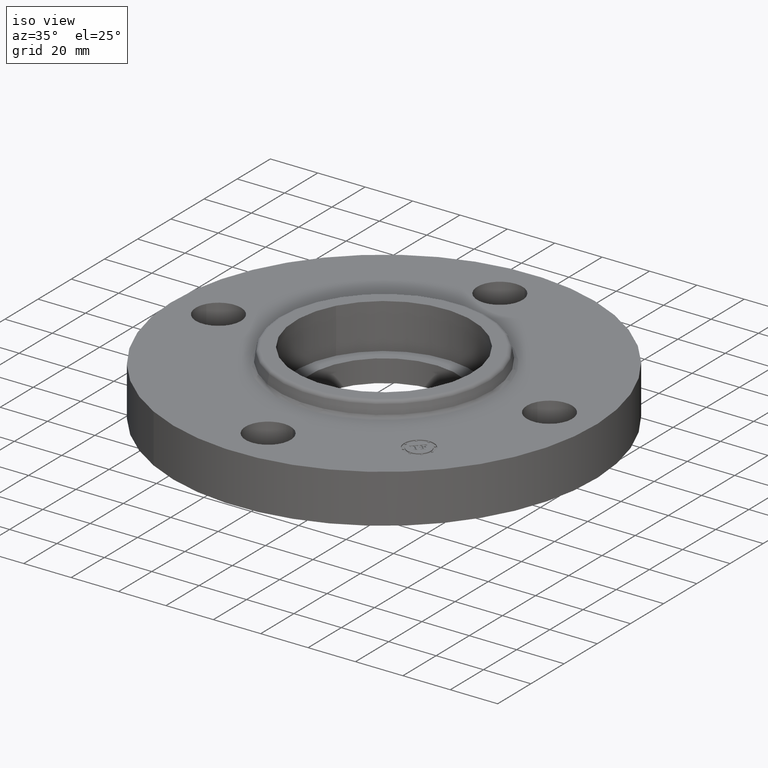
[diagram: clean part render]
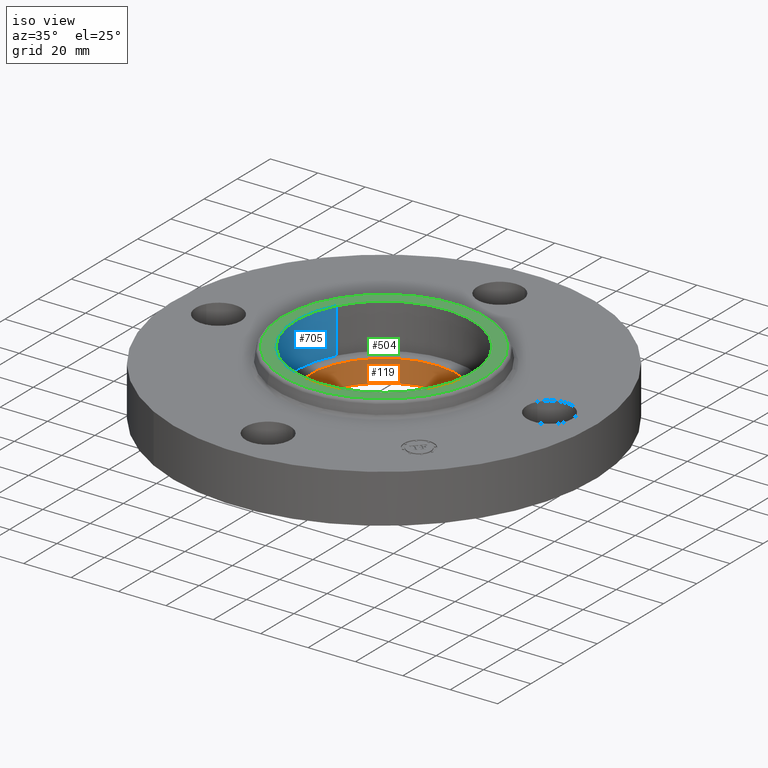
[diagram: same view with three faces highlighted in distinct colors, each labeled with its STEP entity id]
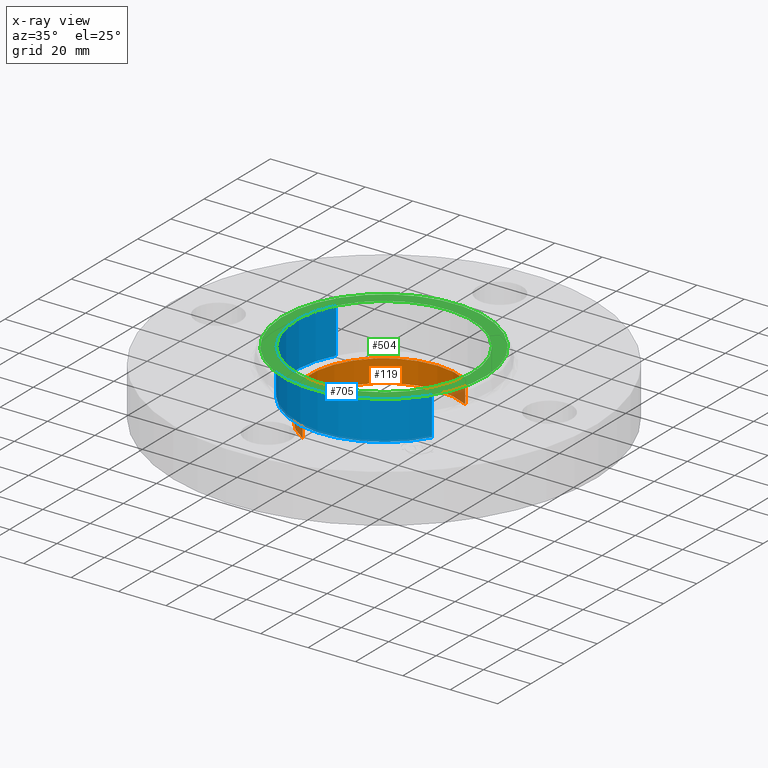
[diagram: x-ray of the same camera — body ghosted, the three highlighted faces saturated]
A machine part, iso view with three faces highlighted in distinct colors.
The next image is the same camera in x-ray (body ghosted, the three faces saturated) — at least one of them is partly hidden behind the body in this view.
Their STEP definitions:

[orange] entity #119 — the highlighted cylindrical surface (partial cylindrical patch) has radius 31.3563 mm, axis along (0, 0, -1).
#60=AXIS2_PLACEMENT_3D('Circle Axis2P3D',#58,#59,$) ;
#80=AXIS2_PLACEMENT_3D('Cylinder Axis2P3D',#77,#78,#79) ;
#110=AXIS2_PLACEMENT_3D('Circle Axis2P3D',#108,#109,$) ;
#58=CARTESIAN_POINT('Axis2P3D Location',(-4.19611851827E-016,-1.39870617276E-016,0.310000000001)) ;
#62=CARTESIAN_POINT('Vertex',(-0.591850827409,-1.08337567266,0.310000000001)) ;
#64=CARTESIAN_POINT('Vertex',(0.591850827409,1.08337567266,0.310000000001)) ;
#77=CARTESIAN_POINT('Axis2P3D Location',(0.,0.,0.498750000002)) ;
#82=CARTESIAN_POINT('Line Origine',(0.591850827409,1.08337567266,0.12375)) ;
#86=CARTESIAN_POINT('Vertex',(0.591850827409,1.08337567266,-0.0625000000003)) ;
#93=CARTESIAN_POINT('Vertex',(-0.591850827409,-1.08337567266,-0.0625000000003)) ;
#96=CARTESIAN_POINT('Line Origine',(-0.591850827409,-1.08337567266,0.12375)) ;
#108=CARTESIAN_POINT('Axis2P3D Location',(0.,0.,-0.0625000000003)) ;
#59=DIRECTION('Axis2P3D Direction',(0.,0.,-0.0393700787402)) ;
#78=DIRECTION('Axis2P3D Direction',(0.,0.,-0.0393700787402)) ;
#79=DIRECTION('Axis2P3D XDirection',(-0.0188750212049,-0.0345504945626,0.)) ;
#83=DIRECTION('Vector Direction',(0.,0.,-0.0393700787402)) ;
#97=DIRECTION('Vector Direction',(0.,0.,-0.0393700787402)) ;
#109=DIRECTION('Axis2P3D Direction',(0.,0.,-0.0393700787402)) ;
#84=VECTOR('Line Direction',#83,0.0393700787402) ;
#98=VECTOR('Line Direction',#97,0.0393700787402) ;
#114=ORIENTED_EDGE('',*,*,#100,.T.) ;
#115=ORIENTED_EDGE('',*,*,#112,.T.) ;
#116=ORIENTED_EDGE('',*,*,#88,.F.) ;
#117=ORIENTED_EDGE('',*,*,#66,.F.) ;
#119=ADVANCED_FACE('PartBody',(#118),#81,.F.) ;
#61=CIRCLE('generated circle',#60,1.2345) ;
#111=CIRCLE('generated circle',#110,1.2345) ;
#81=CYLINDRICAL_SURFACE('generated cylinder',#80,1.2345) ;
#66=EDGE_CURVE('',#63,#65,#61,.T.) ;
#88=EDGE_CURVE('',#65,#87,#85,.T.) ;
#100=EDGE_CURVE('',#63,#94,#99,.T.) ;
#112=EDGE_CURVE('',#94,#87,#111,.T.) ;
#113=EDGE_LOOP('',(#114,#115,#116,#117)) ;
#118=FACE_OUTER_BOUND('',#113,.T.) ;
#85=LINE('Line',#82,#84) ;
#99=LINE('Line',#96,#98) ;
#63=VERTEX_POINT('',#62) ;
#65=VERTEX_POINT('',#64) ;
#87=VERTEX_POINT('',#86) ;
#94=VERTEX_POINT('',#93) ;

[blue] entity #705 — the highlighted cylindrical surface (partial cylindrical patch) has radius 37.338 mm, axis along (0, 0, -1).
#51=AXIS2_PLACEMENT_3D('Circle Axis2P3D',#49,#50,$) ;
#497=AXIS2_PLACEMENT_3D('Circle Axis2P3D',#495,#496,$) ;
#680=AXIS2_PLACEMENT_3D('Cylinder Axis2P3D',#677,#678,#679) ;
#44=CARTESIAN_POINT('Vertex',(-1.29004636598,0.704755541751,0.310000000001)) ;
#46=CARTESIAN_POINT('Vertex',(1.29004636598,-0.704755541751,0.310000000001)) ;
#49=CARTESIAN_POINT('Axis2P3D Location',(1.39870617276E-016,1.04902962957E-016,0.310000000001)) ;
#490=CARTESIAN_POINT('Vertex',(-1.29004636598,0.704755541751,1.06)) ;
#492=CARTESIAN_POINT('Vertex',(1.29004636598,-0.704755541751,1.06)) ;
#495=CARTESIAN_POINT('Axis2P3D Location',(4.19611851827E-016,2.79741234551E-016,1.06)) ;
#677=CARTESIAN_POINT('Axis2P3D Location',(1.39870617276E-016,1.04902962957E-016,1.05606299213)) ;
#682=CARTESIAN_POINT('Line Origine',(-1.29004636598,0.704755541751,0.685000000003)) ;
#687=CARTESIAN_POINT('Line Origine',(1.29004636598,-0.704755541751,0.685000000003)) ;
#50=DIRECTION('Axis2P3D Direction',(0.,0.,-0.0393700787402)) ;
#496=DIRECTION('Axis2P3D Direction',(0.,0.,-0.0393700787402)) ;
#678=DIRECTION('Axis2P3D Direction',(0.,0.,-0.0393700787402)) ;
#679=DIRECTION('Axis2P3D XDirection',(0.0345504945626,-0.0188750212049,0.)) ;
#683=DIRECTION('Vector Direction',(0.,0.,-0.0393700787402)) ;
#688=DIRECTION('Vector Direction',(0.,0.,-0.0393700787402)) ;
#684=VECTOR('Line Direction',#683,0.0393700787402) ;
#689=VECTOR('Line Direction',#688,0.0393700787402) ;
#700=ORIENTED_EDGE('',*,*,#499,.F.) ;
#701=ORIENTED_EDGE('',*,*,#691,.F.) ;
#702=ORIENTED_EDGE('',*,*,#53,.T.) ;
#703=ORIENTED_EDGE('',*,*,#686,.T.) ;
#705=ADVANCED_FACE('PartBody',(#704),#681,.F.) ;
#52=CIRCLE('generated circle',#51,1.47000000001) ;
#498=CIRCLE('generated circle',#497,1.47000000001) ;
#681=CYLINDRICAL_SURFACE('generated cylinder',#680,1.47000000001) ;
#53=EDGE_CURVE('',#47,#45,#52,.T.) ;
#499=EDGE_CURVE('',#493,#491,#498,.T.) ;
#686=EDGE_CURVE('',#45,#491,#685,.F.) ;
#691=EDGE_CURVE('',#47,#493,#690,.F.) ;
#699=EDGE_LOOP('',(#700,#701,#702,#703)) ;
#704=FACE_OUTER_BOUND('',#699,.T.) ;
#685=LINE('Line',#682,#684) ;
#690=LINE('Line',#687,#689) ;
#45=VERTEX_POINT('',#44) ;
#47=VERTEX_POINT('',#46) ;
#491=VERTEX_POINT('',#490) ;
#493=VERTEX_POINT('',#492) ;

[green] entity #504 — the highlighted planar face has unit normal (0, 0, -1).
#448=AXIS2_PLACEMENT_3D('Circle Axis2P3D',#446,#447,$) ;
#467=AXIS2_PLACEMENT_3D('Circle Axis2P3D',#465,#466,$) ;
#480=AXIS2_PLACEMENT_3D('Plane Axis2P3D',#477,#478,#479) ;
#488=AXIS2_PLACEMENT_3D('Circle Axis2P3D',#486,#487,$) ;
#497=AXIS2_PLACEMENT_3D('Circle Axis2P3D',#495,#496,$) ;
#443=CARTESIAN_POINT('Vertex',(0.808106396737,1.47922883707,1.06)) ;
#446=CARTESIAN_POINT('Axis2P3D Location',(0.,0.,1.06)) ;
#450=CARTESIAN_POINT('Vertex',(-0.808106396737,-1.47922883707,1.06)) ;
#465=CARTESIAN_POINT('Axis2P3D Location',(0.,0.,1.06)) ;
#477=CARTESIAN_POINT('Axis2P3D Location',(0.,1.68557227696,1.06)) ;
#486=CARTESIAN_POINT('Axis2P3D Location',(2.44773580232E-016,-2.79741234551E-016,1.06)) ;
#490=CARTESIAN_POINT('Vertex',(-1.29004636598,0.704755541751,1.06)) ;
#492=CARTESIAN_POINT('Vertex',(1.29004636598,-0.704755541751,1.06)) ;
#495=CARTESIAN_POINT('Axis2P3D Location',(4.19611851827E-016,2.79741234551E-016,1.06)) ;
#447=DIRECTION('Axis2P3D Direction',(0.,0.,-0.0393700787402)) ;
#466=DIRECTION('Axis2P3D Direction',(0.,0.,-0.0393700787402)) ;
#478=DIRECTION('Axis2P3D Direction',(0.,0.,-0.0393700787402)) ;
#479=DIRECTION('Axis2P3D XDirection',(0.0393700787402,0.,0.)) ;
#487=DIRECTION('Axis2P3D Direction',(0.,0.,-0.0393700787402)) ;
#496=DIRECTION('Axis2P3D Direction',(0.,0.,-0.0393700787402)) ;
#483=ORIENTED_EDGE('',*,*,#452,.F.) ;
#484=ORIENTED_EDGE('',*,*,#469,.F.) ;
#501=ORIENTED_EDGE('',*,*,#494,.T.) ;
#502=ORIENTED_EDGE('',*,*,#499,.T.) ;
#503=FACE_BOUND('',#500,.T.) ;
#504=ADVANCED_FACE('PartBody',(#485,#503),#481,.F.) ;
#449=CIRCLE('generated circle',#448,1.68557227696) ;
#468=CIRCLE('generated circle',#467,1.68557227696) ;
#489=CIRCLE('generated circle',#488,1.47000000001) ;
#498=CIRCLE('generated circle',#497,1.47000000001) ;
#452=EDGE_CURVE('',#444,#451,#449,.T.) ;
#469=EDGE_CURVE('',#451,#444,#468,.T.) ;
#494=EDGE_CURVE('',#491,#493,#489,.T.) ;
#499=EDGE_CURVE('',#493,#491,#498,.T.) ;
#482=EDGE_LOOP('',(#483,#484)) ;
#500=EDGE_LOOP('',(#501,#502)) ;
#485=FACE_OUTER_BOUND('',#482,.T.) ;
#481=PLANE('',#480) ;
#444=VERTEX_POINT('',#443) ;
#451=VERTEX_POINT('',#450) ;
#491=VERTEX_POINT('',#490) ;
#493=VERTEX_POINT('',#492) ;